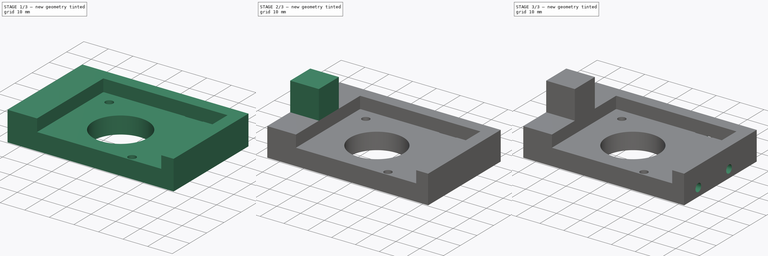
[diagram: build sequence overview — one tinted view per stage of 3, left to right]
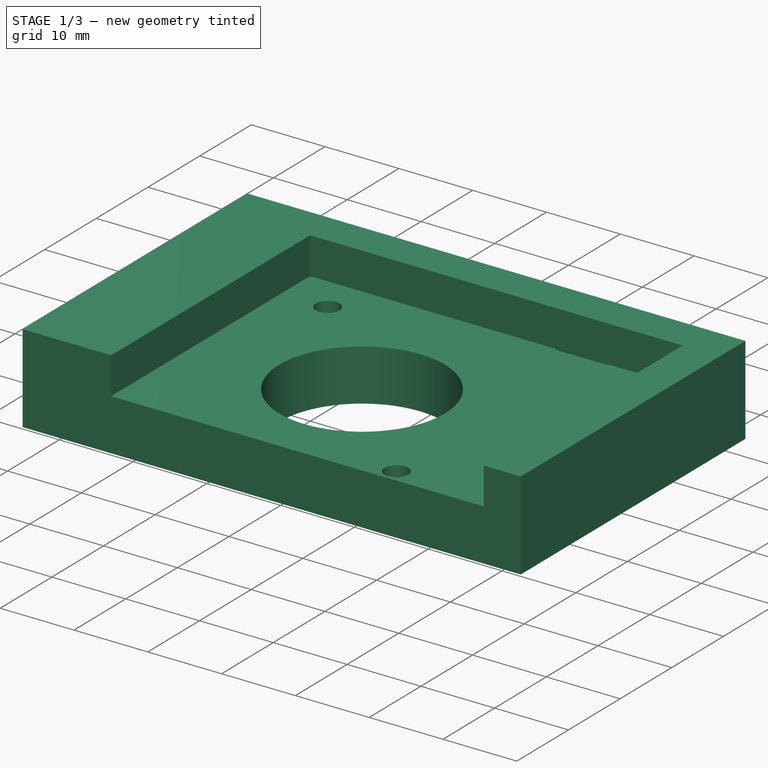
[diagram: stage 1 of 3 — iso view after this stage's code; geometry added in this stage tinted green]
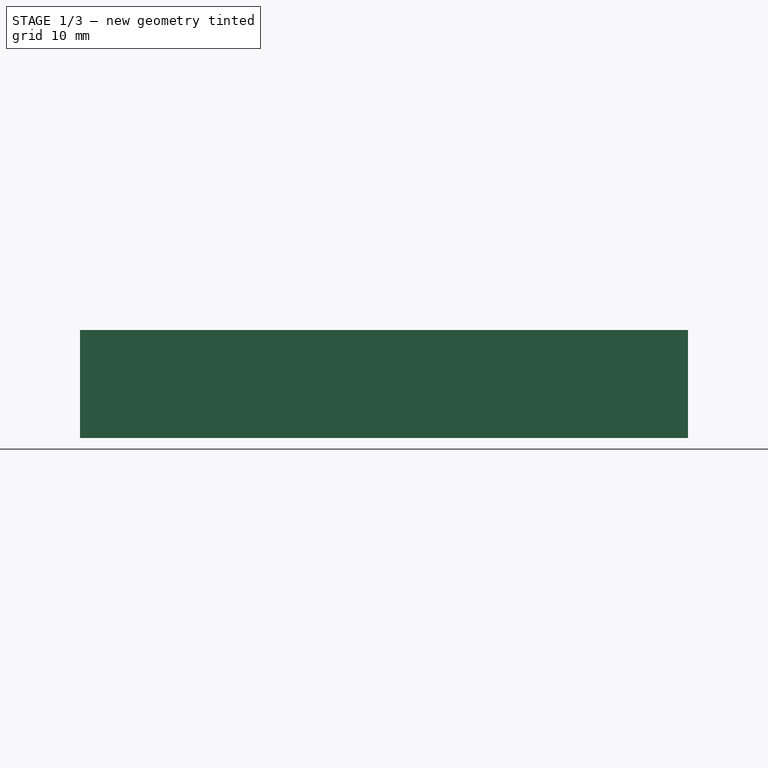
[diagram: stage 1 of 3 — front view after this stage's code; geometry added in this stage tinted green]
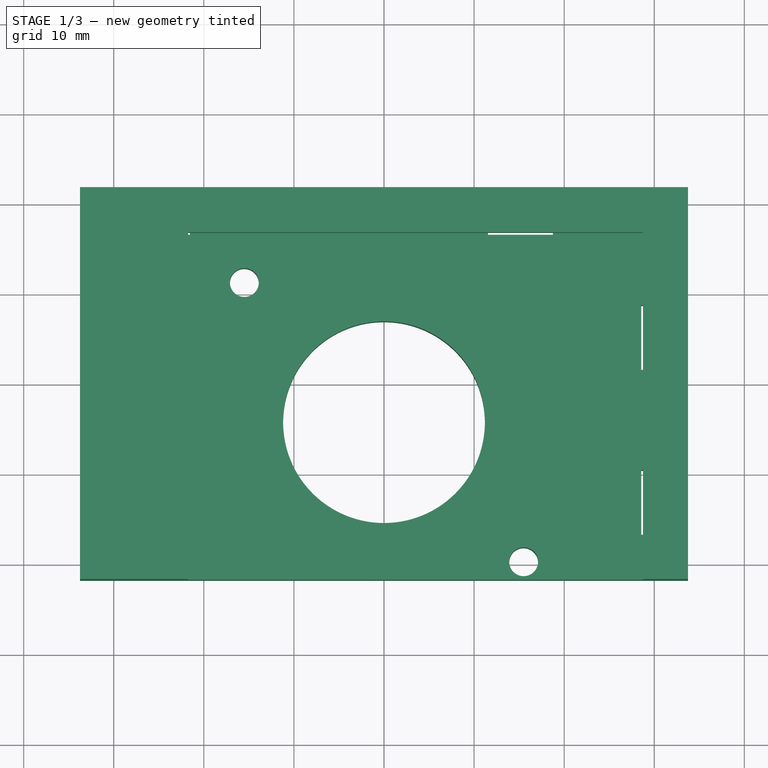
[diagram: stage 1 of 3 — top view after this stage's code; geometry added in this stage tinted green]
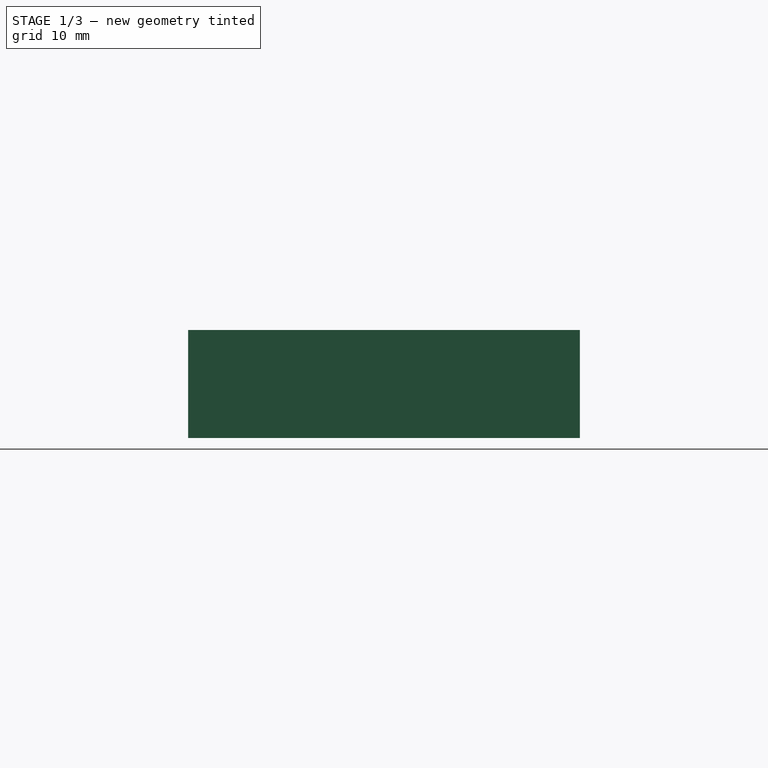
[diagram: stage 1 of 3 — right view after this stage's code; geometry added in this stage tinted green]
FCSTD DOCUMENT  (FreeCAD 0.16RUnknown)
Label: yAxisMotorEnd-pt
License: All rights reserved
LicenseURL: http://en.wikipedia.org/wiki/All_rights_reserved
objects: Sketcher::SketchObject×6, PartDesign::Pad×3, PartDesign::Pocket×3
note: 18 computed .brp shape members not serialized (recipe doc carries the construction recipe); baked Part::Feature solids carry a one-line shape summary decoded from their .brp

FEATURE [Sketcher::SketchObject] Sketch
  sketch-geometry (29):
    g0: LineSegment StartX=-33.75 StartY=21.75 StartZ=0 EndX=-33.75 EndY=-21.75 EndZ=0
    g1: LineSegment StartX=-33.75 StartY=-21.75 StartZ=0 EndX=33.75 EndY=-21.75 EndZ=0
    g2: LineSegment StartX=33.75 StartY=-21.75 StartZ=0 EndX=33.75 EndY=21.75 EndZ=0
    g3: LineSegment StartX=33.75 StartY=21.75 StartZ=0 EndX=-33.75 EndY=21.75 EndZ=0
    g4: LineSegment StartX=11.55 StartY=19.75 StartZ=0 EndX=18.75 EndY=19.75 EndZ=0
    g5: LineSegment StartX=18.75 StartY=19.75 StartZ=0 EndX=18.75 EndY=16.55 EndZ=0
    g6: LineSegment StartX=18.75 StartY=16.55 StartZ=0 EndX=11.55 EndY=16.55 EndZ=0
    g7: LineSegment StartX=11.55 StartY=16.55 StartZ=0 EndX=11.55 EndY=19.75 EndZ=0
    g8: LineSegment StartX=-28.75 StartY=19.75 StartZ=0 EndX=-21.55 EndY=19.75 EndZ=0
    g9: LineSegment StartX=-21.55 StartY=19.75 StartZ=0 EndX=-21.55 EndY=16.55 EndZ=0
    g10: LineSegment StartX=-21.55 StartY=16.55 StartZ=0 EndX=-28.75 EndY=16.55 EndZ=0
    g11: LineSegment StartX=-28.75 StartY=16.55 StartZ=0 EndX=-28.75 EndY=19.75 EndZ=0
    g12: LineSegment StartX=28.55 StartY=8.75 StartZ=0 EndX=31.75 EndY=8.75 EndZ=0
    g13: LineSegment StartX=31.75 StartY=8.75 StartZ=0 EndX=31.75 EndY=1.55 EndZ=0
    g14: LineSegment StartX=31.75 StartY=1.55 StartZ=0 EndX=28.55 EndY=1.55 EndZ=0
    g15: LineSegment StartX=28.55 StartY=1.55 StartZ=0 EndX=28.55 EndY=8.75 EndZ=0
    g16: LineSegment StartX=28.55 StartY=-9.55 StartZ=0 EndX=31.75 EndY=-9.55 EndZ=0
    g17: LineSegment StartX=31.75 StartY=-9.55 StartZ=0 EndX=31.75 EndY=-16.75 EndZ=0
    g18: LineSegment StartX=31.75 StartY=-16.75 StartZ=0 EndX=28.55 EndY=-16.75 EndZ=0
    g19: LineSegment StartX=28.55 StartY=-16.75 StartZ=0 EndX=28.55 EndY=-9.55 EndZ=0
    g20: LineSegment [constr] StartX=-33.75 StartY=13.75 StartZ=0 EndX=33.75 EndY=13.75 EndZ=0
    g21: LineSegment [constr] StartX=23.75 StartY=21.75 StartZ=0 EndX=23.75 EndY=-21.75 EndZ=0
    g22: LineSegment [constr] StartX=0 StartY=0 StartZ=0 EndX=0 EndY=-4.25 EndZ=0
    g23: LineSegment [constr] StartX=0 StartY=-4.25 StartZ=0 EndX=0 EndY=-21 EndZ=0
    g24: LineSegment [constr] StartX=-33.75 StartY=-4.25 StartZ=0 EndX=0 EndY=-4.25 EndZ=0
    g25: LineSegment [constr] StartX=0 StartY=-4.25 StartZ=0 EndX=33.75 EndY=-4.25 EndZ=0
    g26: Circle CenterX=0 CenterY=-4.25 CenterZ=0 NormalX=0 NormalY=0 NormalZ=1 Radius=11.2
    g27: Circle CenterX=-15.5 CenterY=11.25 CenterZ=0 NormalX=0 NormalY=0 NormalZ=1 Radius=1.6
    g28: Circle CenterX=15.5 CenterY=-19.75 CenterZ=0 NormalX=0 NormalY=0 NormalZ=1 Radius=1.6
  constraints (89):
    c: Vertical(g0)
    c: Coincident(g0,g1)
    c: Horizontal(g1)
    c: Coincident(g1,g2)
    c: Vertical(g2)
    c: Coincident(g2,g3)
    c: Coincident(g3,g0)
    c: Horizontal(g3)
    c: Equal(g3,g1)
    c: DistanceX(g3,g3) = 67.5
    c: DistanceY(g0,g0) = 43.5
    c: Coincident(g4,g5)
    c: Coincident(g5,g6)
    c: Coincident(g6,g7)
    c: Coincident(g7,g4)
    c: Horizontal(g6)
    c: Vertical(g5)
    c: Vertical(g7)
    c: Coincident(g8,g9)
    c: Coincident(g9,g10)
    c: Coincident(g10,g11)
    c: Coincident(g11,g8)
    c: Horizontal(g8)
    c: Horizontal(g10)
    c: Vertical(g9)
    c: Vertical(g11)
    c: Coincident(g12,g13)
    c: Coincident(g13,g14)
    c: Coincident(g14,g15)
    c: Coincident(g15,g12)
    c: Horizontal(g12)
    c: Horizontal(g14)
    c: Vertical(g13)
    c: Vertical(g15)
    c: Coincident(g16,g17)
    c: Coincident(g17,g18)
    c: Coincident(g18,g19)
    c: Coincident(g19,g16)
    c: Horizontal(g16)
    c: Horizontal(g18)
    c: Vertical(g17)
    c: Vertical(g19)
    c: Equal(g8,g4)
    c: Equal(g4,g13)
    c: Equal(g13,g17)
    c: Equal(g9,g5)
    c: Equal(g5,g14)
    c: Equal(g14,g18)
    c: Distance(g8) = 7.2
    c: Distance(g9) = 3.2
    c: PointOnObject(g20,g0)
    c: PointOnObject(g20,g2)
    c: Horizontal(g20)
    c: DistanceY(g20,g0) = 8
    c: PointOnObject(g21,g3)
    c: Vertical(g21)
    c: DistanceX(g21,g2) = 10
    c: DistanceY(g4,g21) = 2
    c: DistanceY(g8,g0) = 2
    c: DistanceX(g0,g8) = 5
    c: DistanceX(g4,g21) = 5
    c: DistanceY(g12,g20) = 5
    c: DistanceX(g12,g20) = 2
    c: DistanceY(g1,g17) = 5
    c: DistanceX(g17,g1) = 2
    c: DistanceX(g0,g-1) = 33.75
    c: DistanceY(g-1,g0) = 21.75
    c: Horizontal(g4)
    c: Equal(g21,g2)
    c: Coincident(g-1,g22)
    c: PointOnObject(g22,g-2)
    c: Coincident(g22,g23)
    c: Vertical(g23)
    c: PointOnObject(g24,g0)
    c: Coincident(g24,g22)
    c: Horizontal(g24)
    c: Coincident(g25,g22)
    c: PointOnObject(g25,g2)
    c: Horizontal(g25)
    c: Distance(g25,g20) = 18
    c: DistanceY(g23,g23) = 16.75
    c: Coincident(g26,g22)
    c: Radius(g26) = 11.2
    c: Radius(g27) = 1.6
    c: DistanceY(g22,g27) = 15.5
    c: DistanceX(g27,g22) = 15.5
    c: Radius(g28) = 1.6
    c: DistanceY(g28,g25) = 15.5
    c: DistanceX(g23,g28) = 15.5
FEATURE [PartDesign::Pad] Pad
  Length = 7
  Length2 = 100
  Sketch = -> Sketch
  Type = 0
FEATURE [Sketcher::SketchObject] Sketch001
  Placement = pos=(0,0,7) rot=(0,0,1;0rad)
  Support = -> Pad [Face25]
  sketch-geometry (8):
    g0: LineSegment StartX=28.75 StartY=-21.75 StartZ=0 EndX=33.75 EndY=-21.75 EndZ=0
    g1: LineSegment StartX=33.75 StartY=-21.75 StartZ=0 EndX=33.75 EndY=21.75 EndZ=0
    g2: LineSegment StartX=33.75 StartY=21.75 StartZ=0 EndX=-33.75 EndY=21.75 EndZ=0
    g3: LineSegment StartX=-33.75 StartY=21.75 StartZ=0 EndX=-33.75 EndY=-21.75 EndZ=0
    g4: LineSegment StartX=-33.75 StartY=-21.75 StartZ=0 EndX=-21.75 EndY=-21.75 EndZ=0
    g5: LineSegment StartX=-21.75 StartY=-21.75 StartZ=0 EndX=-21.75 EndY=16.75 EndZ=0
    g6: LineSegment StartX=-21.75 StartY=16.75 StartZ=0 EndX=28.75 EndY=16.75 EndZ=0
    g7: LineSegment StartX=28.75 StartY=16.75 StartZ=0 EndX=28.75 EndY=-21.75 EndZ=0
  constraints (25):
    c: Horizontal(g0)
    c: Coincident(g0,g1)
    c: Vertical(g1)
    c: Coincident(g1,g2)
    c: Horizontal(g2)
    c: Coincident(g2,g3)
    c: Vertical(g3)
    c: Coincident(g3,g4)
    c: Horizontal(g4)
    c: Coincident(g4,g5)
    c: Vertical(g5)
    c: Coincident(g5,g6)
    c: Coincident(g6,g7)
    c: Coincident(g7,g0)
    c: Horizontal(g6)
    c: Vertical(g7)
    c: Equal(g5,g7)
    c: DistanceX(g4,g4) = 12
    c: DistanceY(g3,g3) = 43.5
    c: Equal(g3,g1)
    c: DistanceY(g5,g2) = 5
    c: DistanceX(g2,g2) = 67.5
    c: DistanceX(g0,g0) = 5
    c: DistanceY(g-1,g2) = 21.75
    c: DistanceX(g2,g-1) = 33.75
FEATURE [PartDesign::Pad] Pad001
  Length = 5
  Length2 = 100
  Sketch = -> Sketch001
  Type = 0
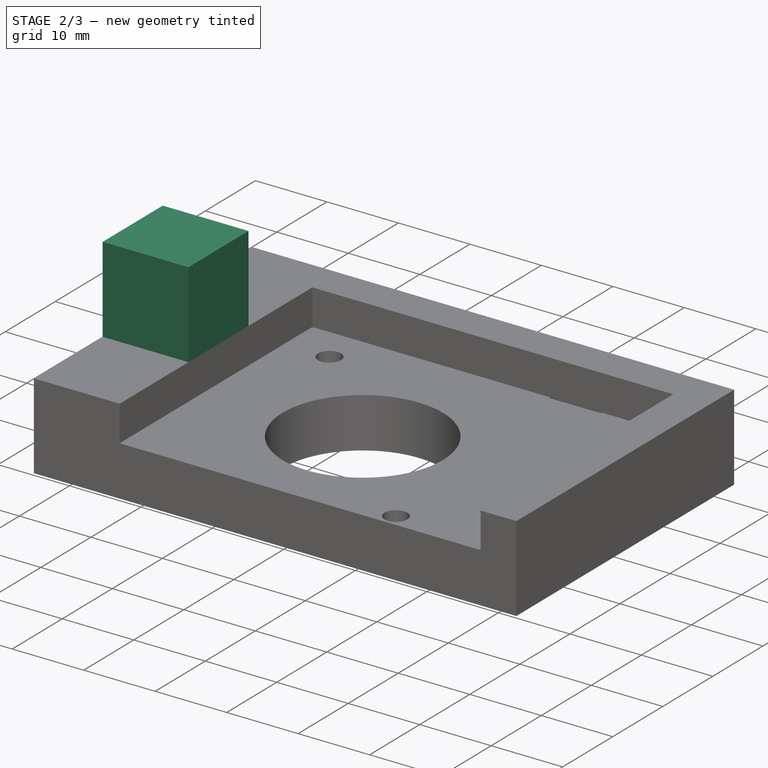
[diagram: stage 2 of 3 — iso view after this stage's code; geometry added in this stage tinted green]
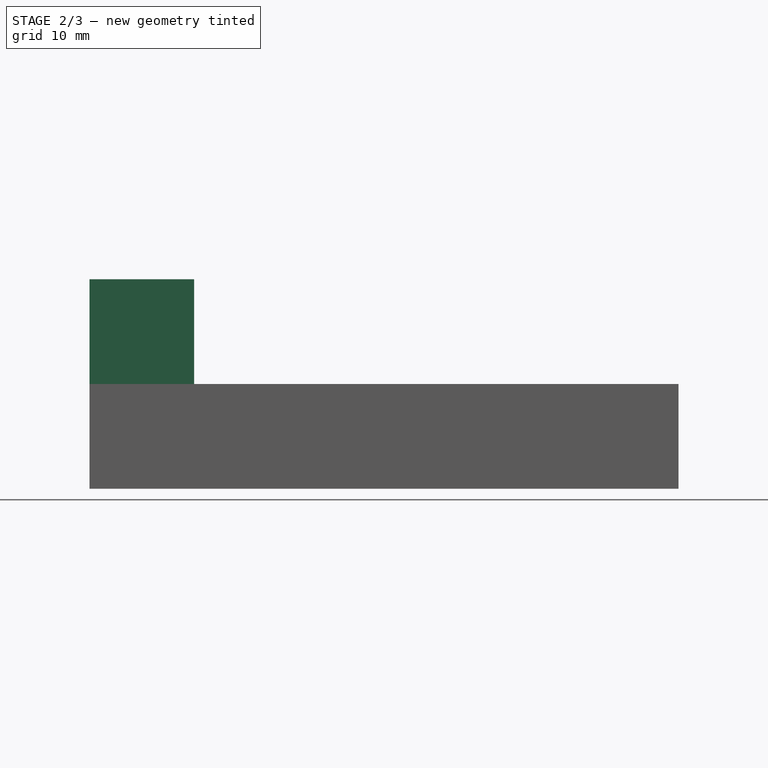
[diagram: stage 2 of 3 — front view after this stage's code; geometry added in this stage tinted green]
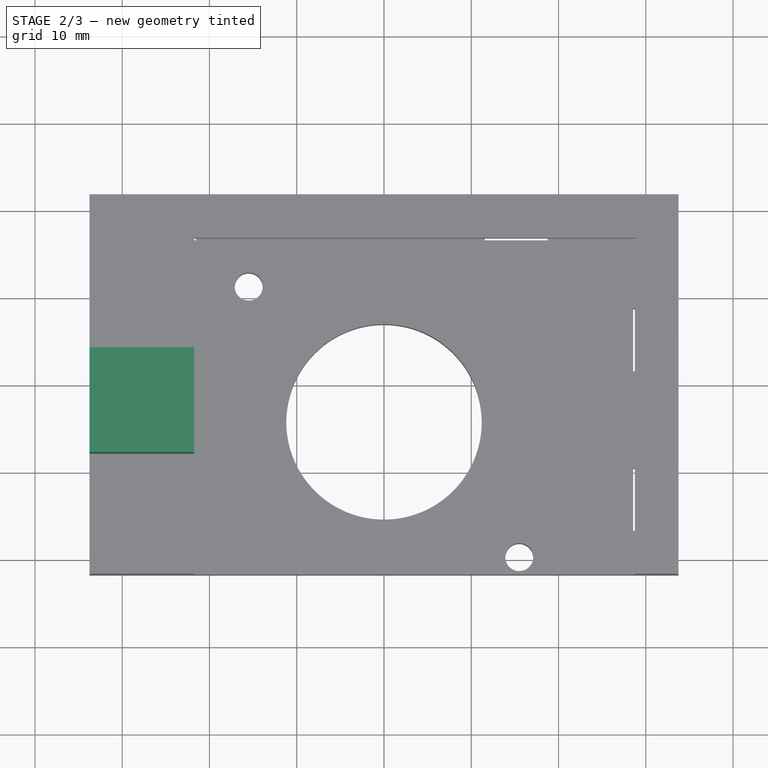
[diagram: stage 2 of 3 — top view after this stage's code; geometry added in this stage tinted green]
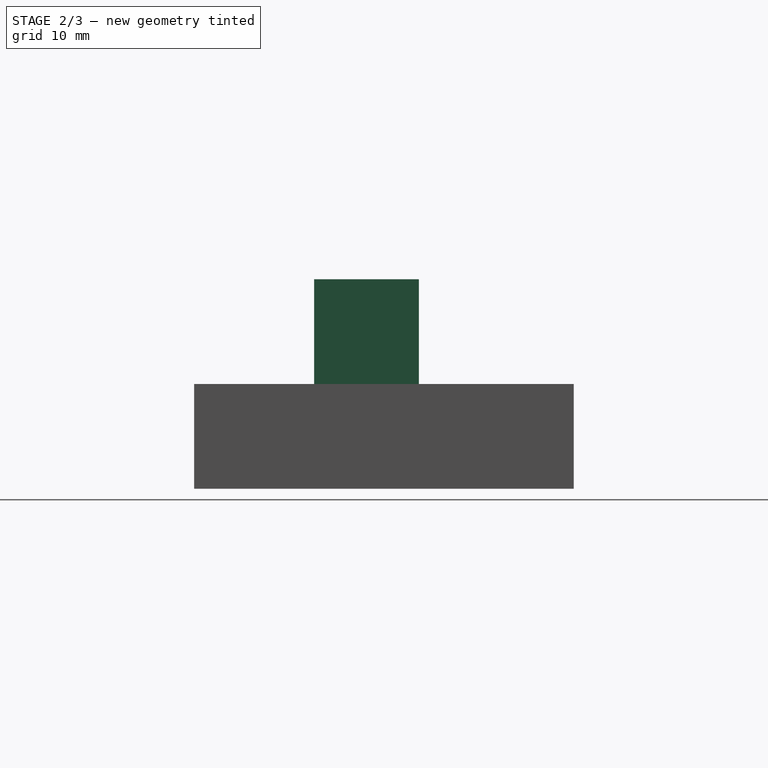
[diagram: stage 2 of 3 — right view after this stage's code; geometry added in this stage tinted green]
FEATURE [Sketcher::SketchObject] Sketch002
  Placement = pos=(0,0,12) rot=(0,0,1;0rad)
  Support = -> Pad001 [Face35]
  sketch-geometry (4):
    g0: LineSegment StartX=-33.75 StartY=4 StartZ=0 EndX=-21.75 EndY=4 EndZ=0
    g1: LineSegment StartX=-21.75 StartY=4 StartZ=0 EndX=-21.75 EndY=-8 EndZ=0
    g2: LineSegment StartX=-21.75 StartY=-8 StartZ=0 EndX=-33.75 EndY=-8 EndZ=0
    g3: LineSegment StartX=-33.75 StartY=-8 StartZ=0 EndX=-33.75 EndY=4 EndZ=0
  constraints (12):
    c: Coincident(g0,g1)
    c: Coincident(g1,g2)
    c: Coincident(g2,g3)
    c: Coincident(g3,g0)
    c: Horizontal(g0)
    c: Horizontal(g2)
    c: Vertical(g1)
    c: Vertical(g3)
    c: Equal(g0,g1)
    c: DistanceX(g0,g0) = 12
    c: DistanceY(g-1,g0) = 4
    c: DistanceX(g0,g-1) = 33.75
FEATURE [PartDesign::Pad] Pad002
  Length = 12
  Length2 = 100
  Sketch = -> Sketch002
  Type = 0
FEATURE [Sketcher::SketchObject] Sketch003
  Placement = pos=(-33.75,0,0) rot=(0.57735,-0.57735,-0.57735;2.0944rad)
  Support = -> Pad002 [Face36]
  sketch-geometry (1):
    g0: Circle CenterX=2 CenterY=18 CenterZ=0 NormalX=0 NormalY=0 NormalZ=1 Radius=4.2
  constraints (3):
    c: Radius(g0) = 4.2
    c: DistanceY(g-1,g0) = 18
    c: DistanceX(g-1,g0) = 2
FEATURE [PartDesign::Pocket] Pocket
  Length = 5
  Sketch = -> Sketch003
  Type = 0
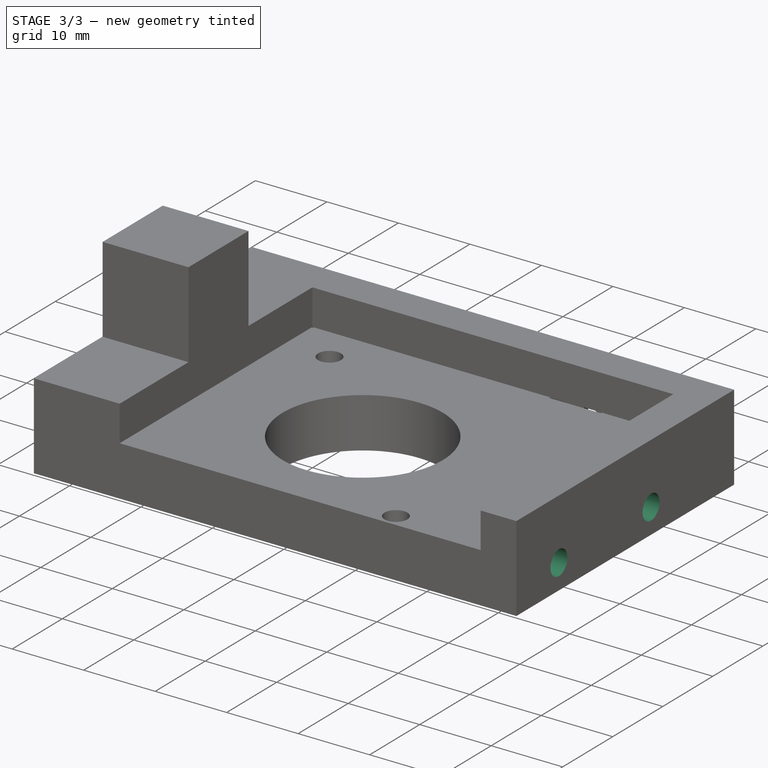
[diagram: stage 3 of 3 — iso view after this stage's code; geometry added in this stage tinted green]
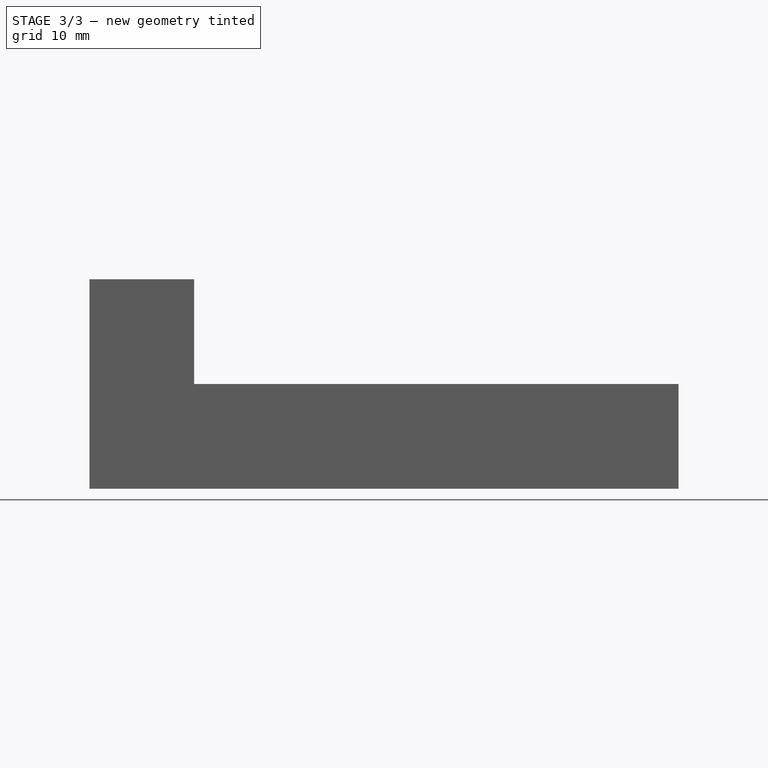
[diagram: stage 3 of 3 — front view after this stage's code; geometry added in this stage tinted green]
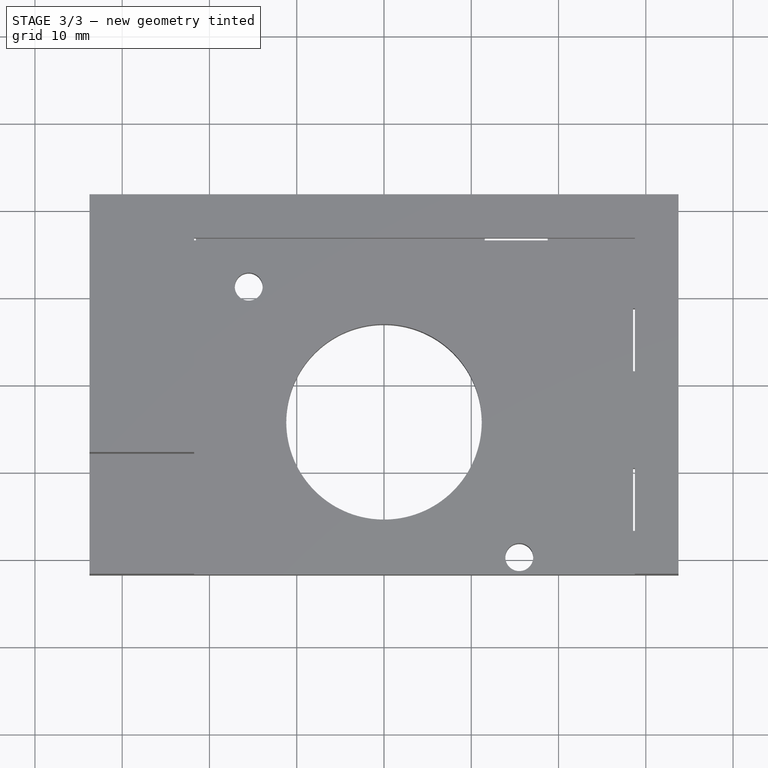
[diagram: stage 3 of 3 — top view after this stage's code; geometry added in this stage tinted green]
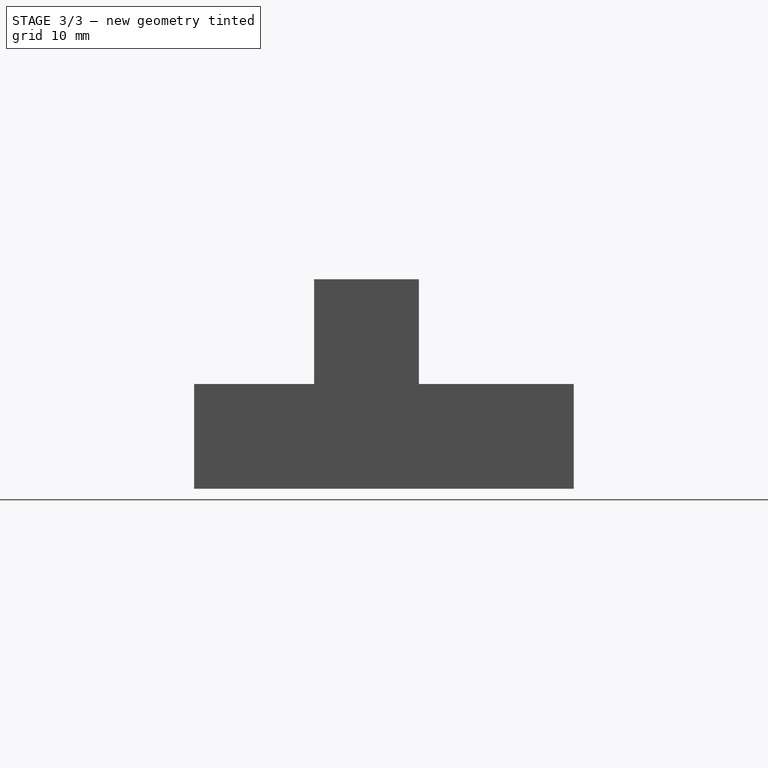
[diagram: stage 3 of 3 — right view after this stage's code; geometry added in this stage tinted green]
FEATURE [Sketcher::SketchObject] Sketch004
  Placement = pos=(0,21.75,0) rot=(0,0.707107,0.707107;3.14159rad)
  Support = -> Pocket [Face5]
  sketch-geometry (3):
    g0: Circle CenterX=25 CenterY=3.75 CenterZ=0 NormalX=0 NormalY=0 NormalZ=1 Radius=1.7
    g1: Circle CenterX=-15 CenterY=3.75 CenterZ=0 NormalX=0 NormalY=0 NormalZ=1 Radius=1.7
    g2: LineSegment [constr] StartX=33.75 StartY=12 StartZ=0 EndX=33.75 EndY=0 EndZ=0
  constraints (10):
    c: PointOnObject(g2,g-1)
    c: Vertical(g2)
    c: DistanceX(g2,g-1) = -33.75
    c: DistanceY(g2,g2) = 12
    c: DistanceX(g2,g0) = -8.75
    c: DistanceX(g2,g1) = -48.75
    c: Equal(g1,g0)
    c: Radius(g0) = 1.7
    c: DistanceY(g-1,g0) = 3.75
    c: DistanceY(g-1,g1) = 3.75
FEATURE [PartDesign::Pocket] Pocket001
  Length = 5
  Sketch = -> Sketch004
  Type = 0
FEATURE [Sketcher::SketchObject] Sketch005
  Placement = pos=(33.75,0,0) rot=(0.57735,0.57735,0.57735;2.0944rad)
  Support = -> Pocket001 [Face4]
  sketch-geometry (4):
    g0: GeomPoint [constr] X=21.75 Y=0 Z=0
    g1: Circle CenterX=5.15 CenterY=3.5 CenterZ=0 NormalX=0 NormalY=0 NormalZ=1 Radius=1.7
    g2: Circle CenterX=-13.25 CenterY=3.5 CenterZ=0 NormalX=0 NormalY=0 NormalZ=1 Radius=1.7
    g3: GeomPoint [constr] X=-21.75 Y=0 Z=0
  constraints (10):
    c: PointOnObject(g0,g-1)
    c: DistanceX(g-1,g0) = 21.75
    c: DistanceY(g3,g-1) = 0
    c: DistanceX(g3,g-1) = 21.75
    c: DistanceY(g3,g2) = 3.5
    c: DistanceX(g1,g0) = 16.6
    c: DistanceY(g0,g1) = 3.5
    c: Equal(g1,g2)
    c: Radius(g2) = 1.7
    c: DistanceX(g3,g2) = 8.5
FEATURE [PartDesign::Pocket] Pocket002
  Length = 5
  Sketch = -> Sketch005
  Type = 0
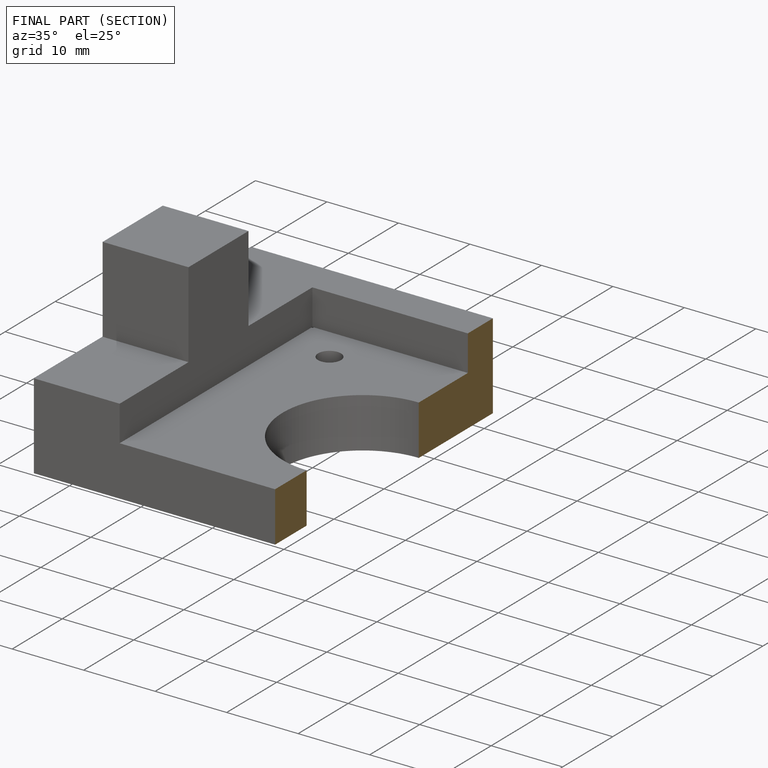
[diagram: finished part — half-section view (interior)]
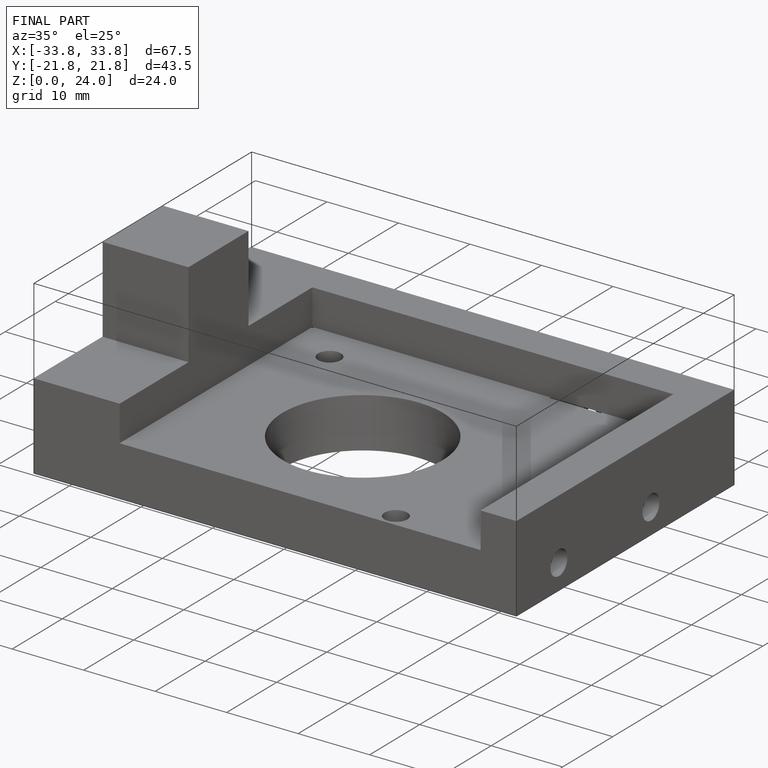
[diagram: finished part — iso view with bounding-box wireframe]
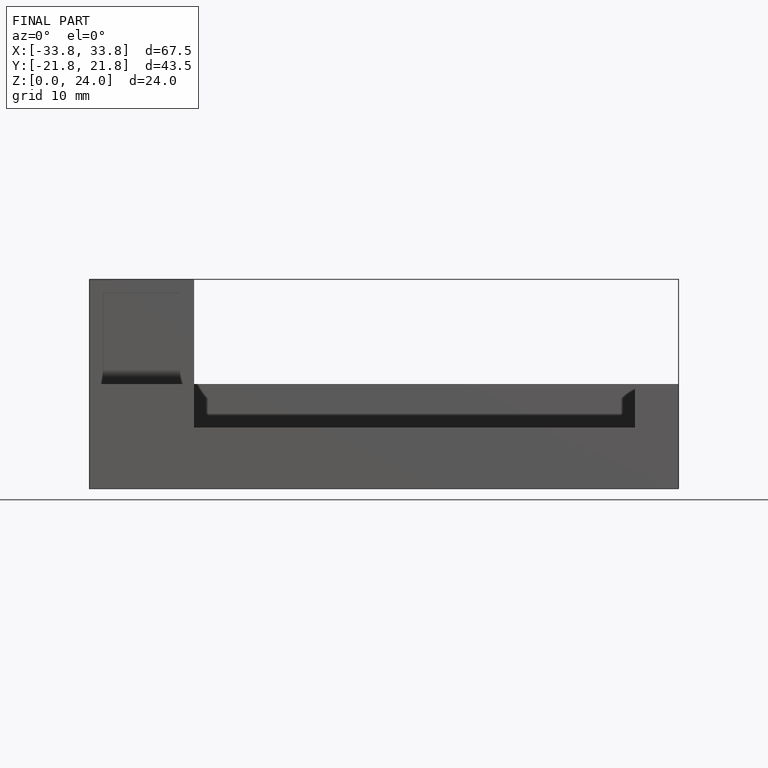
[diagram: finished part — front view with bounding-box wireframe]
